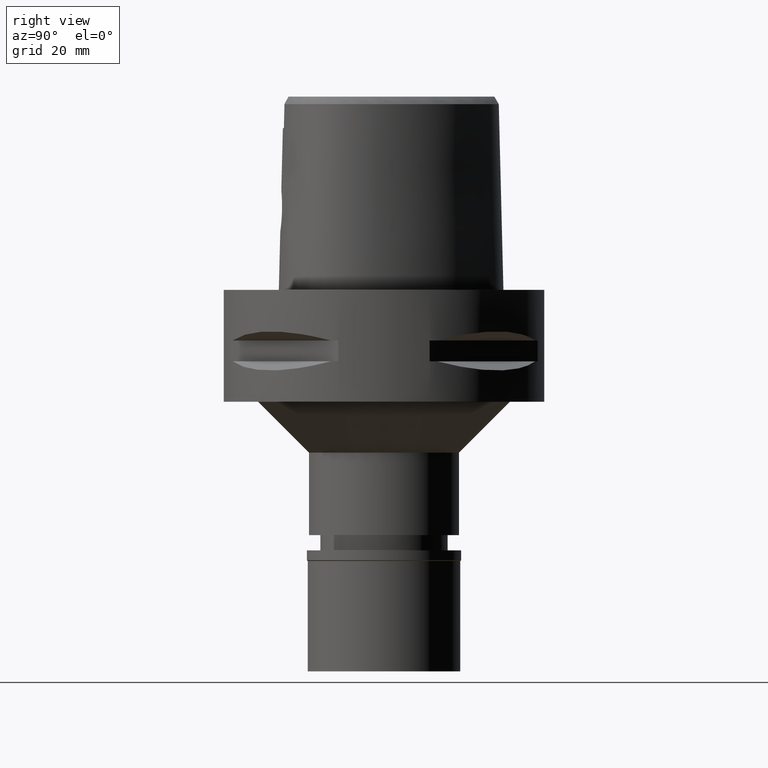
[diagram: clean part render]
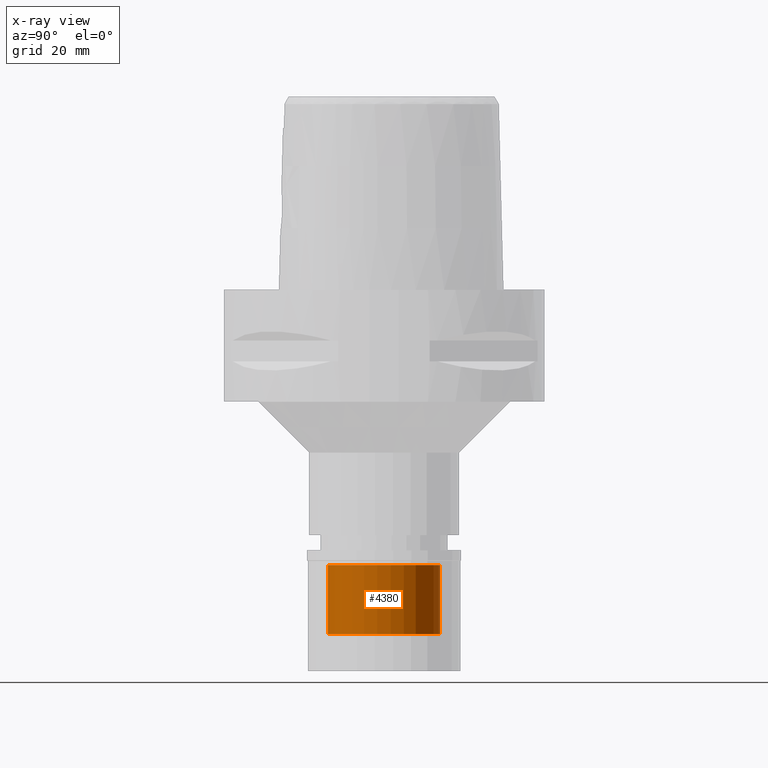
[diagram: x-ray — body ghosted, one internal face saturated and labeled with its STEP entity id]
A machine part, right view, then the same camera in x-ray: the body is ghosted and one INTERNAL B-rep face — a face not visible from any outside direction — is saturated and labeled: STEP entity #4380.
In plain terms, the highlighted cylindrical surface (partial cylindrical patch) has radius 11 mm, axis along (0, 0, -1).
Its self-contained STEP definition (entity closure, byte-faithful):
#9 = EDGE_CURVE ( 'NONE', #3504, #4637, #4389, .T. ) ;
#257 = LINE ( 'NONE', #3261, #4704 ) ;
#331 = EDGE_CURVE ( 'NONE', #2009, #4091, #4146, .T. ) ;
#358 = EDGE_CURVE ( 'NONE', #4637, #2009, #257, .T. ) ;
#641 = AXIS2_PLACEMENT_3D ( 'NONE', #1069, #2571, #3238 ) ;
#784 = CARTESIAN_POINT ( 'NONE',  ( 0.0000000000000000000, -11.00000000000000000, -16.50000000000000000 ) ) ;
#980 = DIRECTION ( 'NONE',  ( 0.0000000000000000000, 0.0000000000000000000, 1.000000000000000000 ) ) ;
#1036 = ORIENTED_EDGE ( 'NONE', *, *, #3279, .F. ) ;
#1069 = CARTESIAN_POINT ( 'NONE',  ( 0.0000000000000000000, 0.0000000000000000000, -16.50000000000000000 ) ) ;
#1153 = CARTESIAN_POINT ( 'NONE',  ( 0.0000000000000000000, 11.00000000000000000, -16.50000000000000000 ) ) ;
#1292 = FACE_OUTER_BOUND ( 'NONE', #2495, .T. ) ;
#1458 = ORIENTED_EDGE ( 'NONE', *, *, #358, .T. ) ;
#1555 = DIRECTION ( 'NONE',  ( 0.0000000000000000000, -1.000000000000000000, 0.0000000000000000000 ) ) ;
#1634 = CYLINDRICAL_SURFACE ( 'NONE', #1892, 11.00000000000000000 ) ;
#1739 = LINE ( 'NONE', #3638, #2624 ) ;
#1780 = DIRECTION ( 'NONE',  ( 0.0000000000000000000, 0.0000000000000000000, 1.000000000000000000 ) ) ;
#1892 = AXIS2_PLACEMENT_3D ( 'NONE', #3780, #3858, #1555 ) ;
#1952 = ORIENTED_EDGE ( 'NONE', *, *, #9, .T. ) ;
#2009 = VERTEX_POINT ( 'NONE', #3561 ) ;
#2197 = ORIENTED_EDGE ( 'NONE', *, *, #331, .T. ) ;
#2310 = AXIS2_PLACEMENT_3D ( 'NONE', #4696, #4326, #3612 ) ;
#2495 = EDGE_LOOP ( 'NONE', ( #1952, #1458, #2197, #1036 ) ) ;
#2571 = DIRECTION ( 'NONE',  ( 0.0000000000000000000, 0.0000000000000000000, -1.000000000000000000 ) ) ;
#2624 = VECTOR ( 'NONE', #980, 1000.000000000000000 ) ;
#3238 = DIRECTION ( 'NONE',  ( 0.0000000000000000000, 1.000000000000000000, 0.0000000000000000000 ) ) ;
#3261 = CARTESIAN_POINT ( 'NONE',  ( 0.0000000000000000000, -11.00000000000000000, -16.50000000000000000 ) ) ;
#3279 = EDGE_CURVE ( 'NONE', #3504, #4091, #1739, .T. ) ;
#3504 = VERTEX_POINT ( 'NONE', #1153 ) ;
#3561 = CARTESIAN_POINT ( 'NONE',  ( 0.0000000000000000000, -11.00000000000000000, -2.899999999999999911 ) ) ;
#3612 = DIRECTION ( 'NONE',  ( 0.0000000000000000000, -1.000000000000000000, 0.0000000000000000000 ) ) ;
#3638 = CARTESIAN_POINT ( 'NONE',  ( 0.0000000000000000000, 11.00000000000000000, -16.50000000000000000 ) ) ;
#3639 = CARTESIAN_POINT ( 'NONE',  ( 0.0000000000000000000, 11.00000000000000000, -2.899999999999999911 ) ) ;
#3780 = CARTESIAN_POINT ( 'NONE',  ( 0.0000000000000000000, 0.0000000000000000000, 0.0000000000000000000 ) ) ;
#3858 = DIRECTION ( 'NONE',  ( 0.0000000000000000000, 0.0000000000000000000, -1.000000000000000000 ) ) ;
#4091 = VERTEX_POINT ( 'NONE', #3639 ) ;
#4146 = CIRCLE ( 'NONE', #2310, 11.00000000000000000 ) ;
#4326 = DIRECTION ( 'NONE',  ( 0.0000000000000000000, 0.0000000000000000000, 1.000000000000000000 ) ) ;
#4380 = ADVANCED_FACE ( 'NONE', ( #1292 ), #1634, .F. ) ;
#4389 = CIRCLE ( 'NONE', #641, 11.00000000000000000 ) ;
#4637 = VERTEX_POINT ( 'NONE', #784 ) ;
#4696 = CARTESIAN_POINT ( 'NONE',  ( 0.0000000000000000000, 0.0000000000000000000, -2.899999999999999911 ) ) ;
#4704 = VECTOR ( 'NONE', #1780, 1000.000000000000000 ) ;